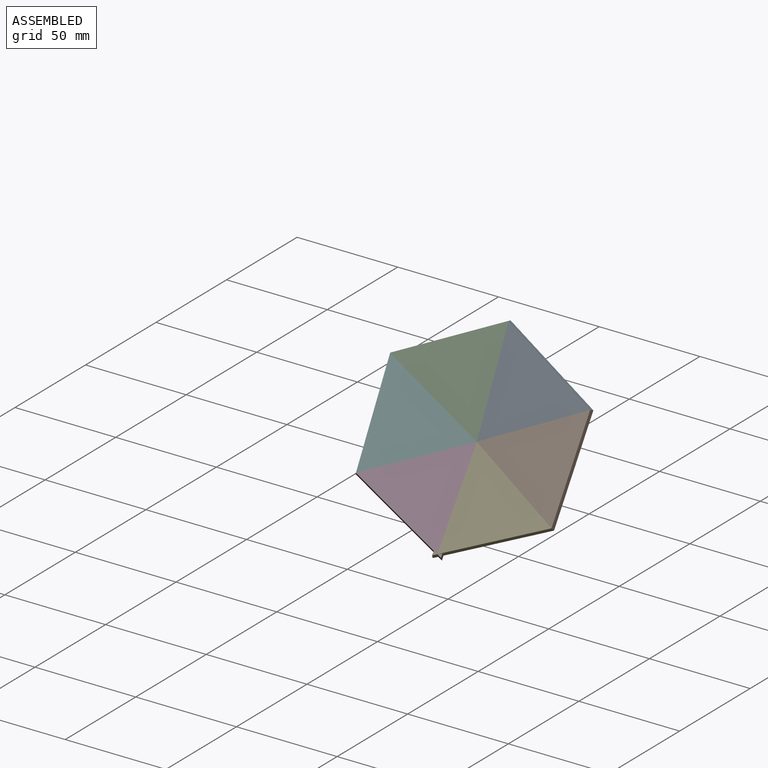
[diagram: assembled view]
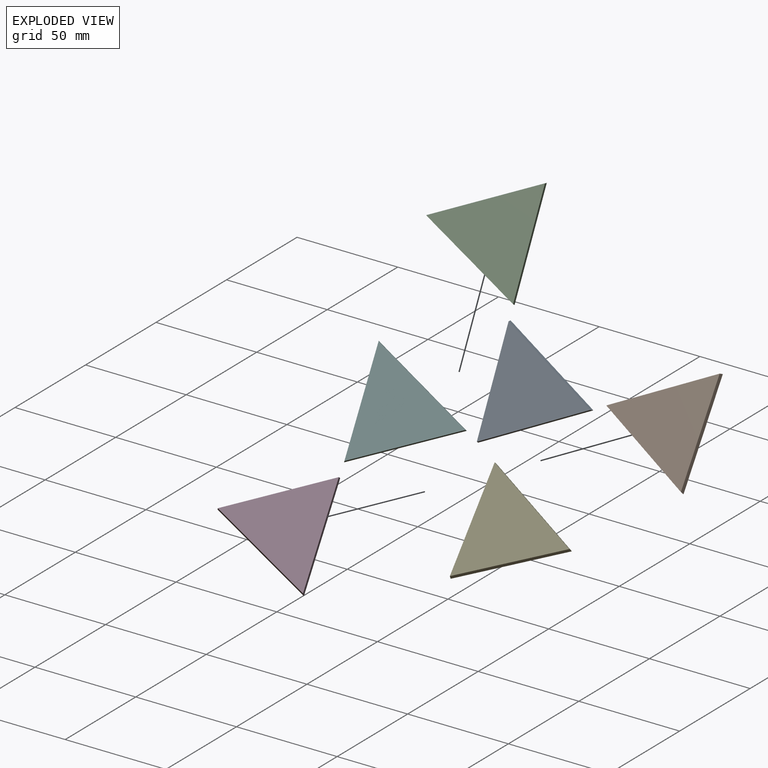
[diagram: exploded view]
GUIDED TOUR — MATED ASSEMBLY (Onshape document ef3dda941a2a794508bb46bf, AutoMate assembly ef3dda941a2a794508bb46bf_7052b6bd3e43988bdadec801_436c09d4516ab5b84d090b16_default)

This assembly has 6 components, labeled P0..P5 below (a component is one placed occurrence of a part; the same part can appear more than once), held together by 10 mates. A mate is a constraint between two components; its type names the relative motion it leaves free:
  REVOLUTE — leaves rotation about the listed axis free (a hinge).
Axis/direction vectors are unit vectors and 'through' points are millimeter coordinates, both in the assembly's world frame.

MATES
  1. REVOLUTE "Revolute 8": P5 <-> P3, axis (0.753, 0.613, 0.241) through (-97.90, 2.87, 72.25) mm
  2. REVOLUTE "Revolute 3": P2 <-> P0, axis (0.011, 0.427, 0.904) through (-58.09, 43.27, 109.05) mm
  3. REVOLUTE "Revolute 2": P1 <-> P0, axis (-0.855, -0.361, -0.372) through (-37.04, 43.79, 94.28) mm
  4. REVOLUTE "Revolute 7": P5 <-> P3, axis (0.753, 0.613, 0.241) through (-77.50, 16.85, 79.96) mm
  5. REVOLUTE "Revolute 1": P0 <-> P1, axis (0.855, 0.361, 0.372) through (-36.66, 41.60, 95.53) mm
  6. REVOLUTE "Revolute 1": P2 <-> P5, axis (0.802, 0.065, -0.594) through (-78.75, 30.76, 101.18) mm
  7. REVOLUTE "Revolute 2": P5 <-> P2, axis (-0.802, -0.065, 0.594) through (-79.77, 32.78, 100.02) mm
  8. REVOLUTE "Revolute 4": P0 <-> P2, axis (-0.011, -0.427, -0.904) through (-58.80, 45.49, 108.01) mm
  9. REVOLUTE "Revolute 6": P4 <-> P1, axis (-0.867, 0.196, 0.459) through (-14.35, 22.48, 62.78) mm
  10. REVOLUTE "Revolute 5": P4 <-> P1, axis (-0.867, 0.196, 0.459) through (-36.75, 29.42, 72.87) mm

ASSEMBLY ORDER
  1. P4 — the base component [order verified]
  2. P3 [order verified]
  3. P1 [order verified]
  4. P5 [order verified]
  5. P0 [order verified]
  6. P2 [order verified]
(P3 verified with a relaxed clearance tolerance: the source model stores slight part interference there.)
Order-tag legend:
  [order verified] — this step's position reverses a verified removal order: the component was checked to insert without passing through the ones already placed.

Of the 6 components, 6 carry the full construction recipe — the FeatureScript program that regenerates the part's solid from scratch; the rest are supplied as boundary geometry only.
Each toured component is shown spotlighted twice — in the assembled view, then in the exploded view, where a leader line traces a displaced component back to its assembled socket (saturated green if recipe-attached, orange if geometry-only; every other component desaturated gray) — followed by its recipe or geometry summary and the mates that hold it.
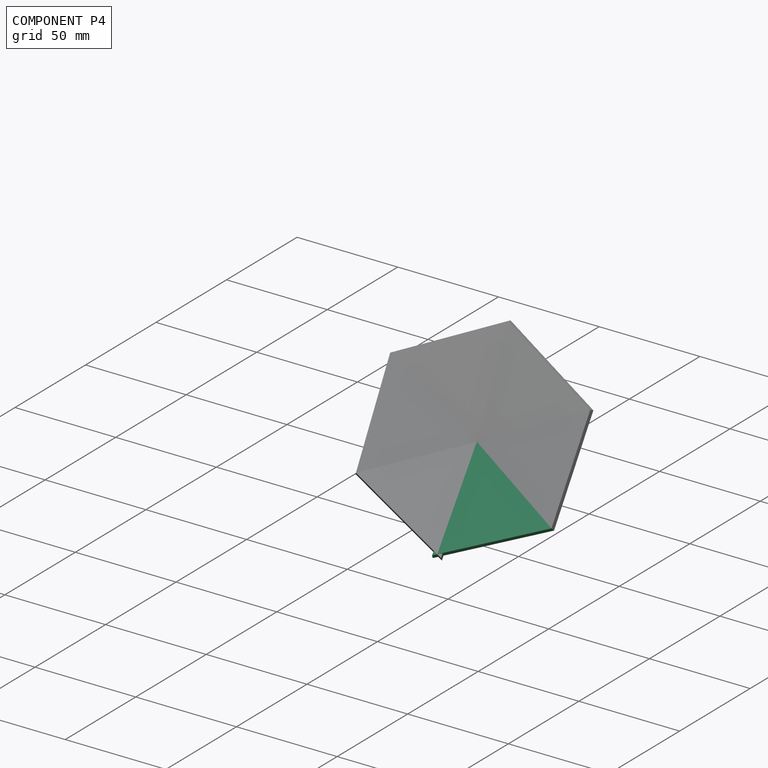
[diagram: component P4 — assembled]
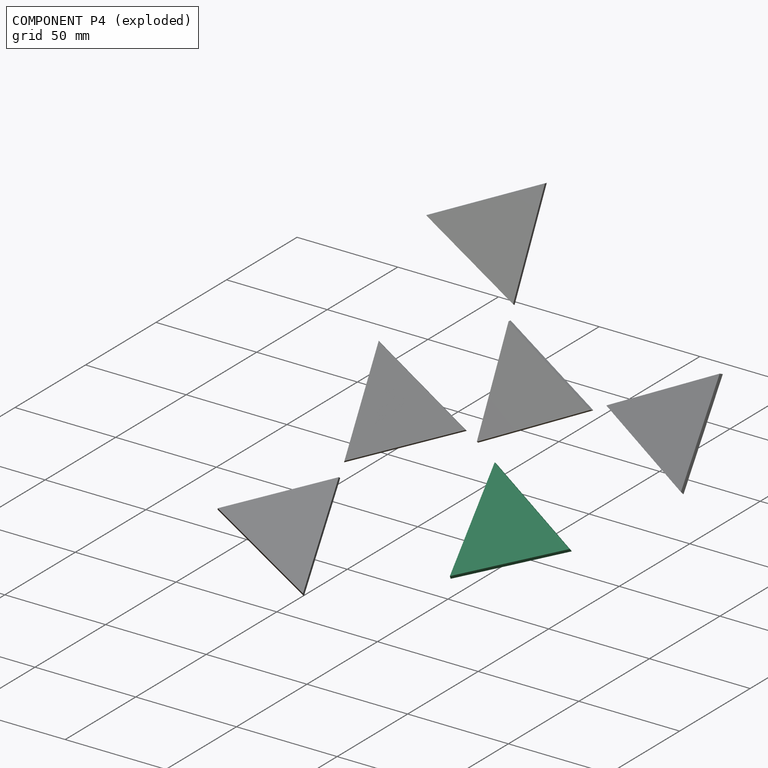
[diagram: component P4 — exploded]
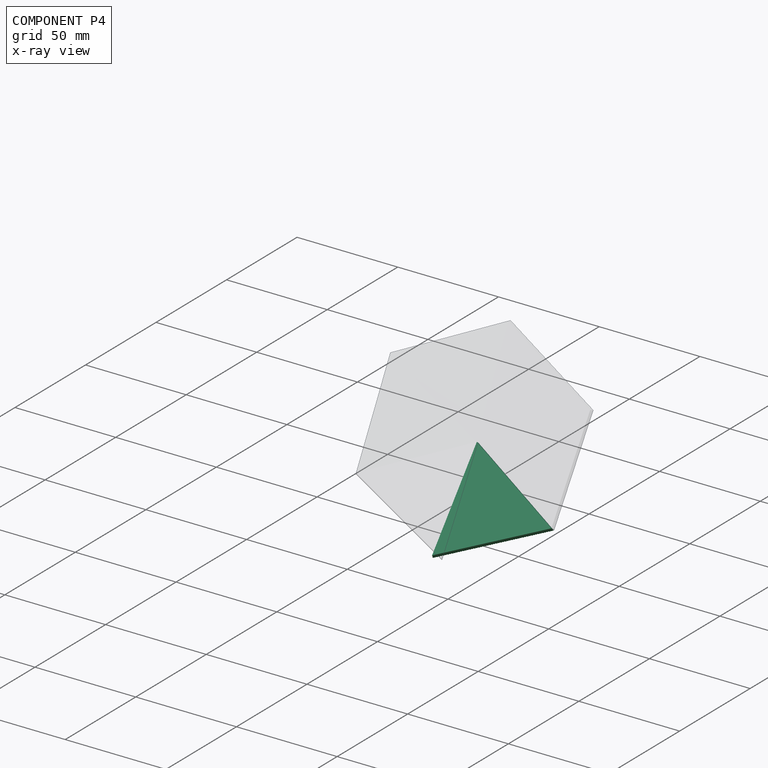
[diagram: component P4 — x-ray view]
COMPONENT P4 — same part as P0 (CADFS 00834853); its construction recipe is shown at P0.
Held by: REVOLUTE mate "Revolute 6" to P1; REVOLUTE mate "Revolute 5" to P1.
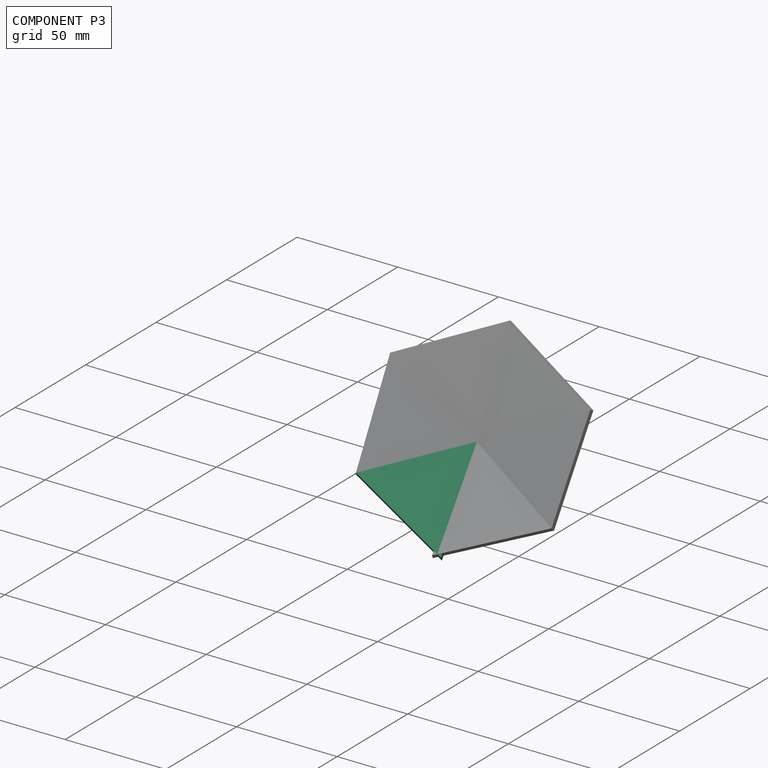
[diagram: component P3 — assembled]
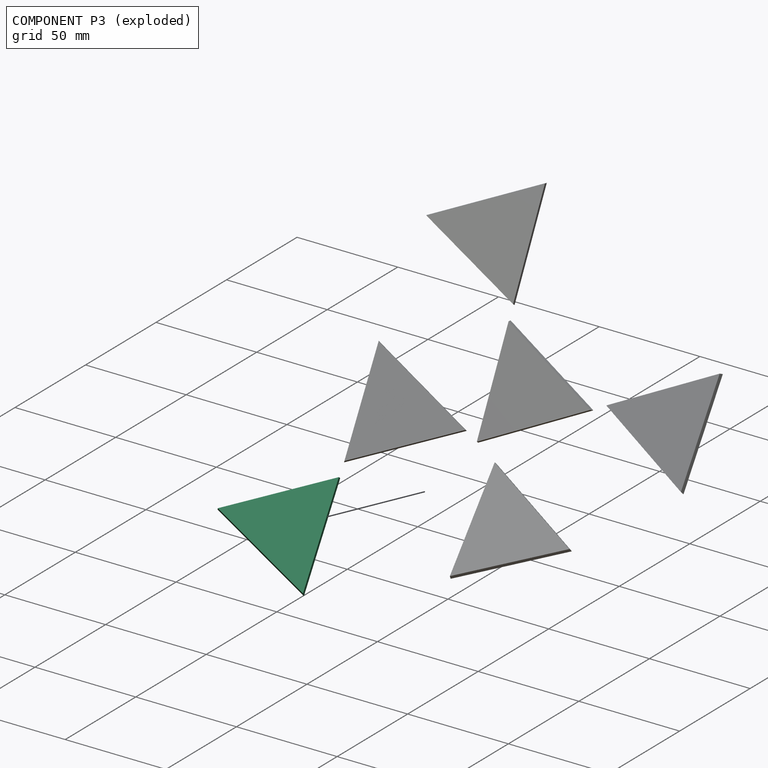
[diagram: component P3 — exploded]
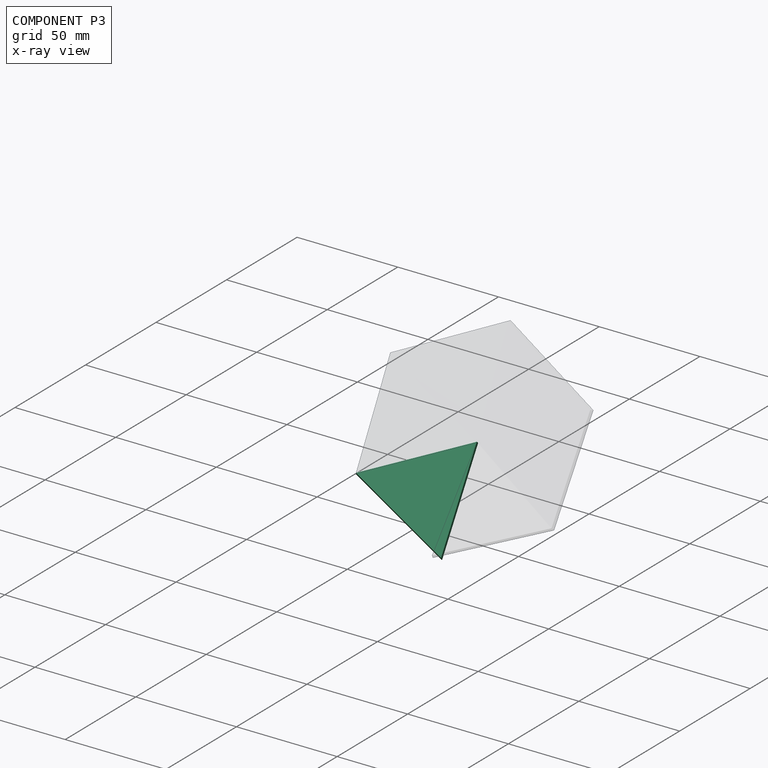
[diagram: component P3 — x-ray view]
COMPONENT P3 — same part as P0 (CADFS 00834853); its construction recipe is shown at P0.
Held by: REVOLUTE mate "Revolute 8" to P5; REVOLUTE mate "Revolute 7" to P5.
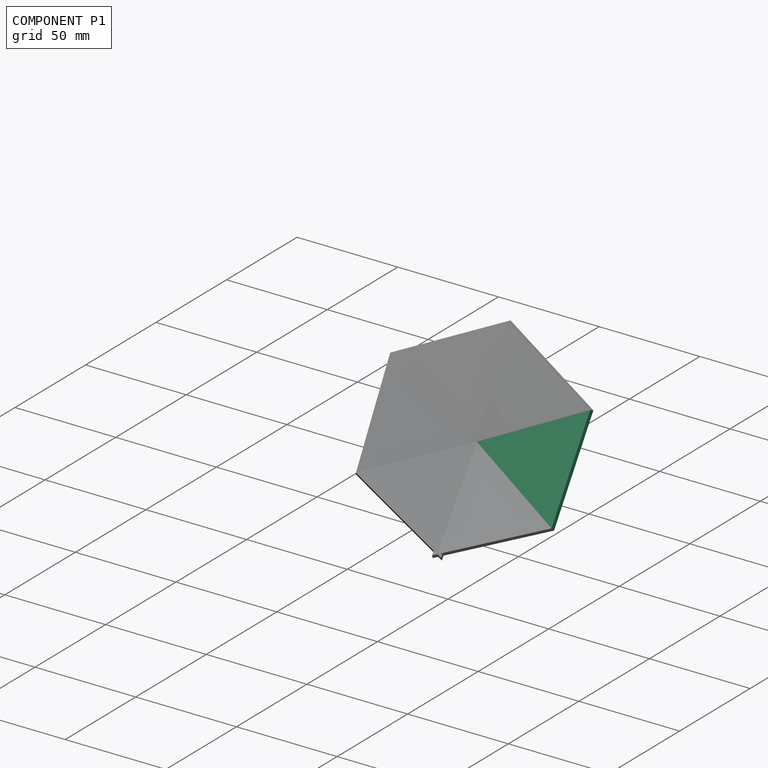
[diagram: component P1 — assembled]
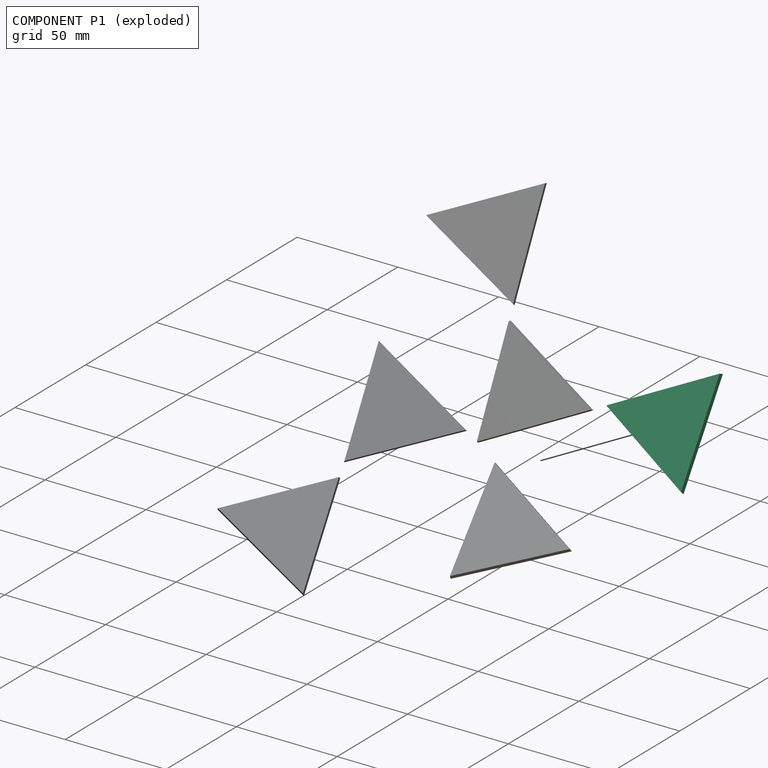
[diagram: component P1 — exploded]
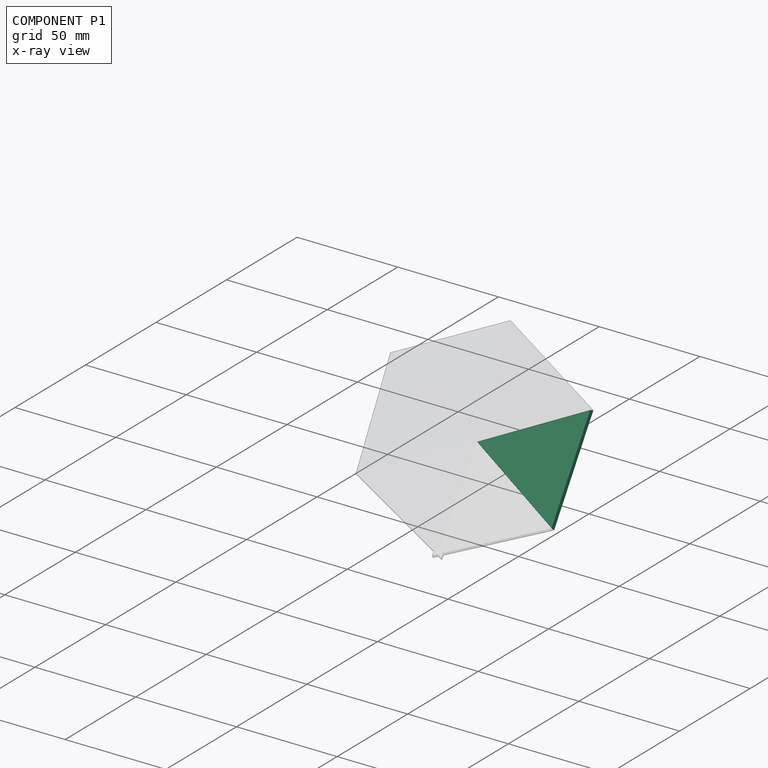
[diagram: component P1 — x-ray view]
COMPONENT P1 — same part as P0 (CADFS 00834853); its construction recipe is shown at P0.
Held by: REVOLUTE mate "Revolute 2" to P0; REVOLUTE mate "Revolute 1" to P0; REVOLUTE mate "Revolute 6" to P4; REVOLUTE mate "Revolute 5" to P4.
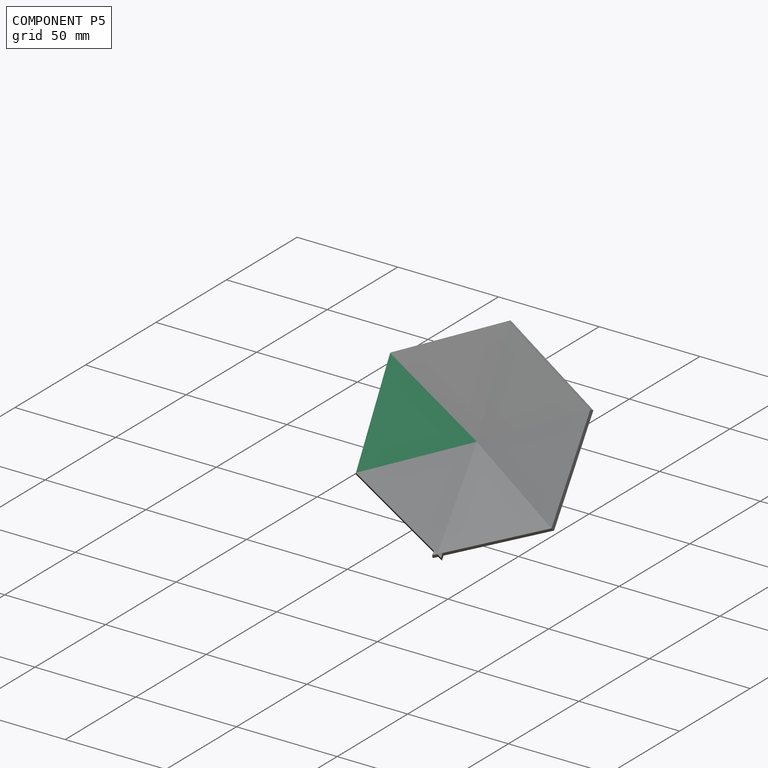
[diagram: component P5 — assembled]
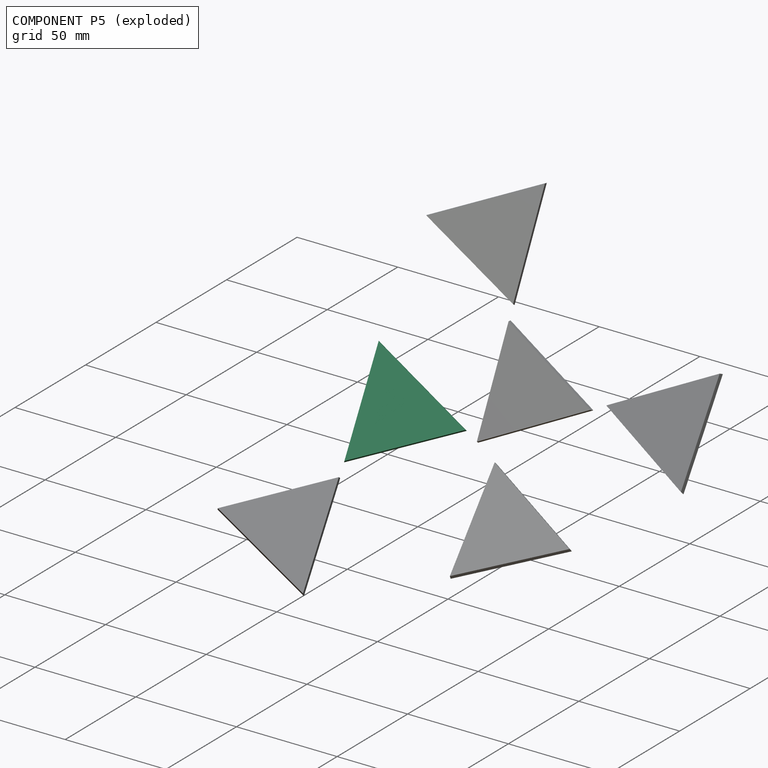
[diagram: component P5 — exploded]
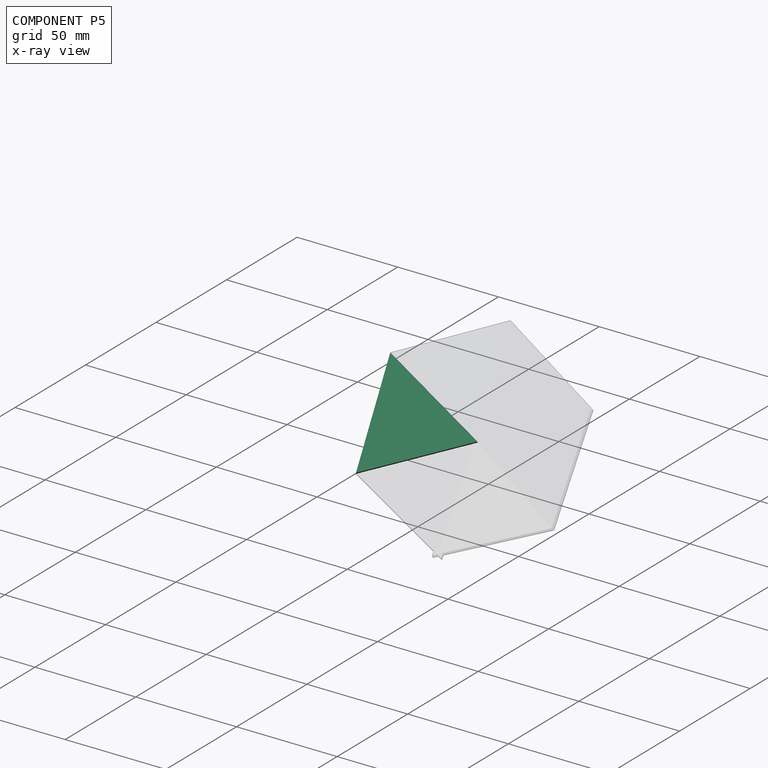
[diagram: component P5 — x-ray view]
COMPONENT P5 — same part as P0 (CADFS 00834853); its construction recipe is shown at P0.
Held by: REVOLUTE mate "Revolute 8" to P3; REVOLUTE mate "Revolute 7" to P3; REVOLUTE mate "Revolute 1" to P2; REVOLUTE mate "Revolute 2" to P2.
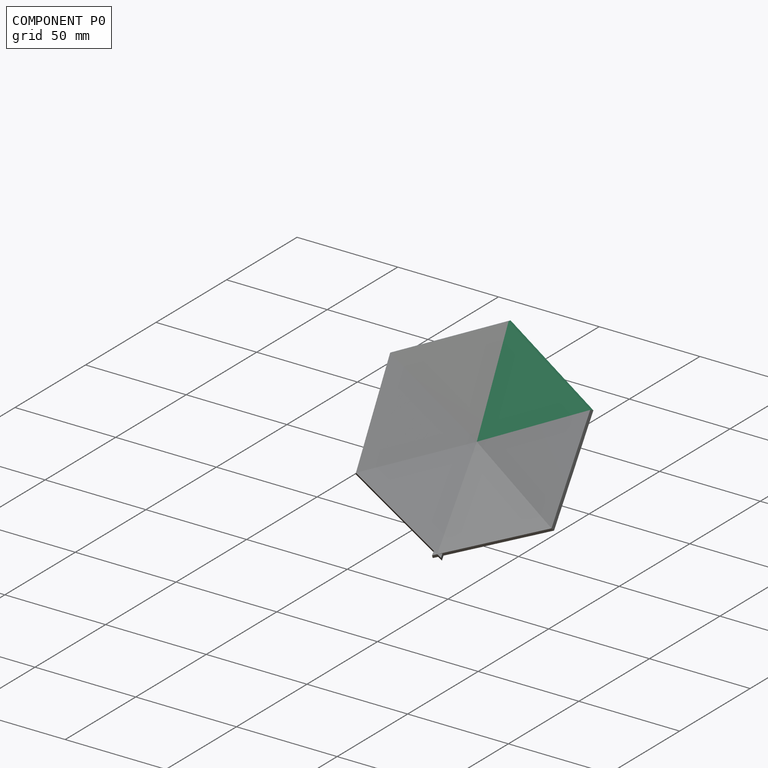
[diagram: component P0 — assembled]
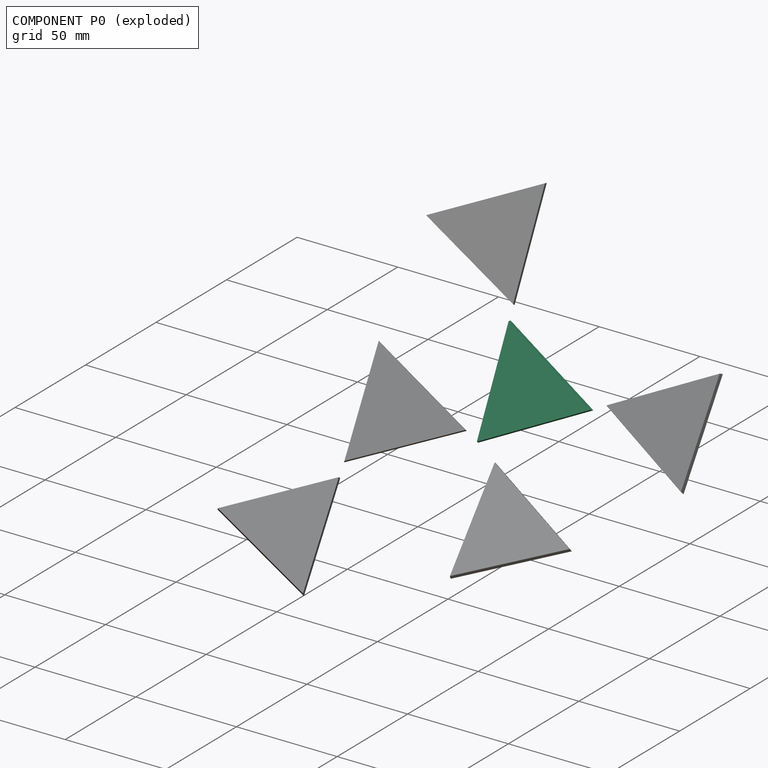
[diagram: component P0 — exploded]
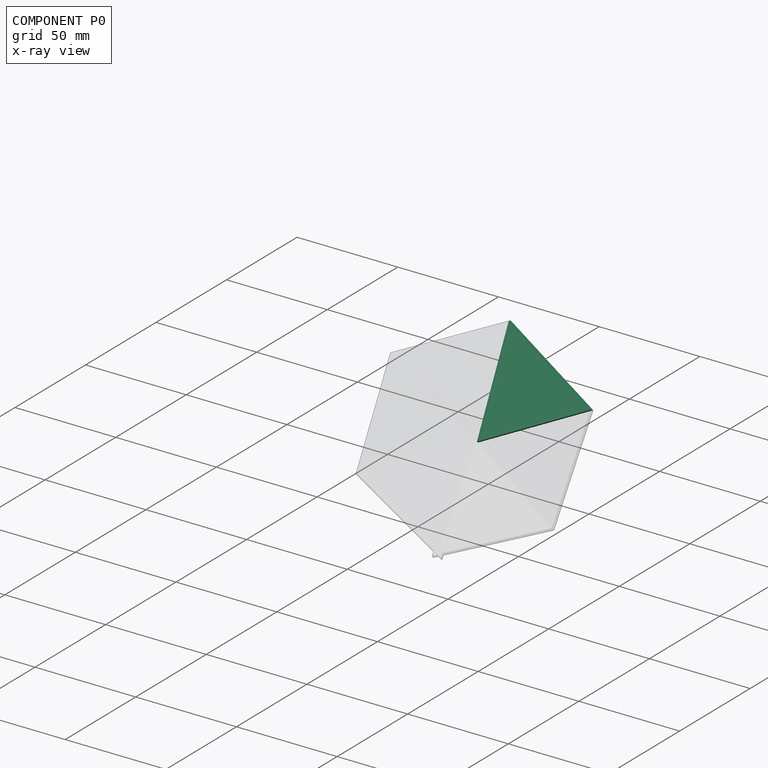
[diagram: component P0 — x-ray view]
COMPONENT P0 — recipe-attached (CADFS 00834853, mesh-verified: the recipe's output STEP matches this component's geometry to below the mesh-comparison resolution (tessellation chordal tolerance ~0.102 mm)).
Held by: REVOLUTE mate "Revolute 3" to P2; REVOLUTE mate "Revolute 2" to P1; REVOLUTE mate "Revolute 1" to P1; REVOLUTE mate "Revolute 4" to P2.
Construction recipe (FeatureScript — the CAD program that rebuilds this solid; sketch coordinates are in the units given by the * unit suffixes, e.g. mm):

FeatureScript 1511;
import(path : "onshape/std/geometry.fs", version : "1511.0");
import(path : "onshape/std/common.fs", version : "1511.0");
const mm = millimeter;
const VERTEX = EntityType.VERTEX;
const EDGE = EntityType.EDGE;
const FACE = EntityType.FACE;
const BODY = EntityType.BODY;
function v(x, y){return vector(x, y);}
function OD(order){return orderDisambiguation(order);}
function OSD(set){return originalSetDisambiguation(set);}
function TD(topology){return topologyDisambiguation(topology);}
function TDD(query){return trueDependencyDisambiguation(query);}
function sQuery(a, b, c) {return sketchEntityQuery(a, b, c);}

annotation { "Feature Type Name" : "Feature", "Feature Type Description" : "" }
export const myFeature = defineFeature(function(context is Context, id is Id, definition is map)
    precondition{}
    {
        {
            var Q0;
            Q0=qCreatedBy(makeId("Front.planeOp"),FACE);
            var sketch = newSketch(context, id + "F0", { "sketchPlane" : qUnion([Q0])});
            skLineSegment(sketch, "E0", {"start": v(-25.4, 0) * mm, "end": v(25.4, 0) * mm});
            skLineSegment(sketch, "E1", {"start": v(25.4, 0) * mm, "end": v(0, 44) * mm});
            skPoint(sketch, "E1.endSnap0", {"position": v(0, 0) * mm});
            skLineSegment(sketch, "E2", {"start": v(0, 44) * mm, "end": v(-25.4, 0) * mm});
            skSolve(sketch);
        }
        {
            var Q0;
            Q0=makeQuery(id+"F0.imprint","IMPRINT",FACE,{"disambiguationData":[TD([[makeQuery(id+"F0.imprint","IMPRINT",EDGE,{"derivedFrom":sQuery(id+"F0.wireOp",EDGE,"E0")}),1.0]])]});
            extrude(context, id + "F1", {"entities" : qUnion([Q0]), "depth" : 2.54 * mm, "offsetDistance" : 25.4 * mm, "hasDraft" : true, "draftAngle" : 5 * degree});
        }
    });
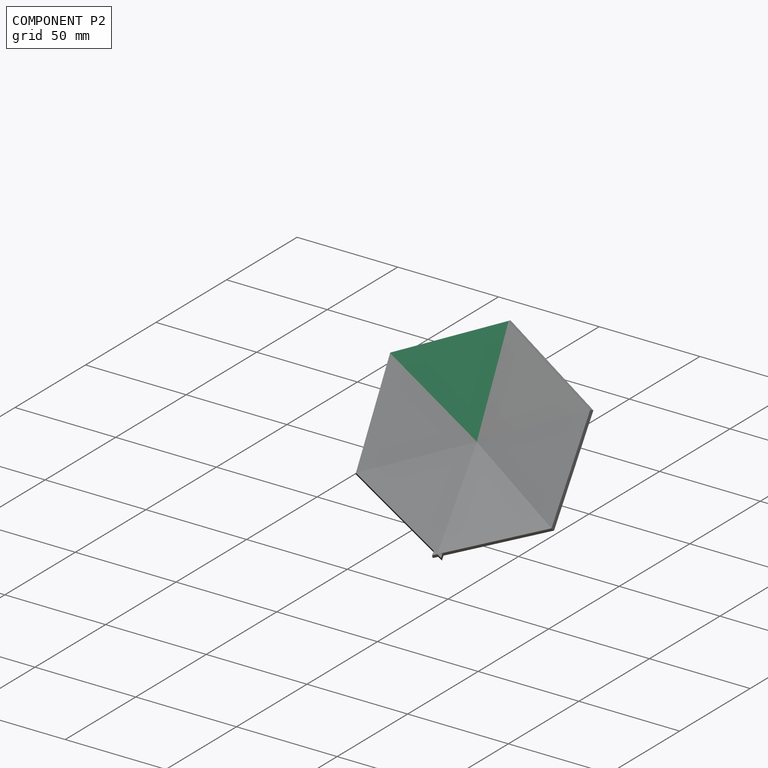
[diagram: component P2 — assembled]
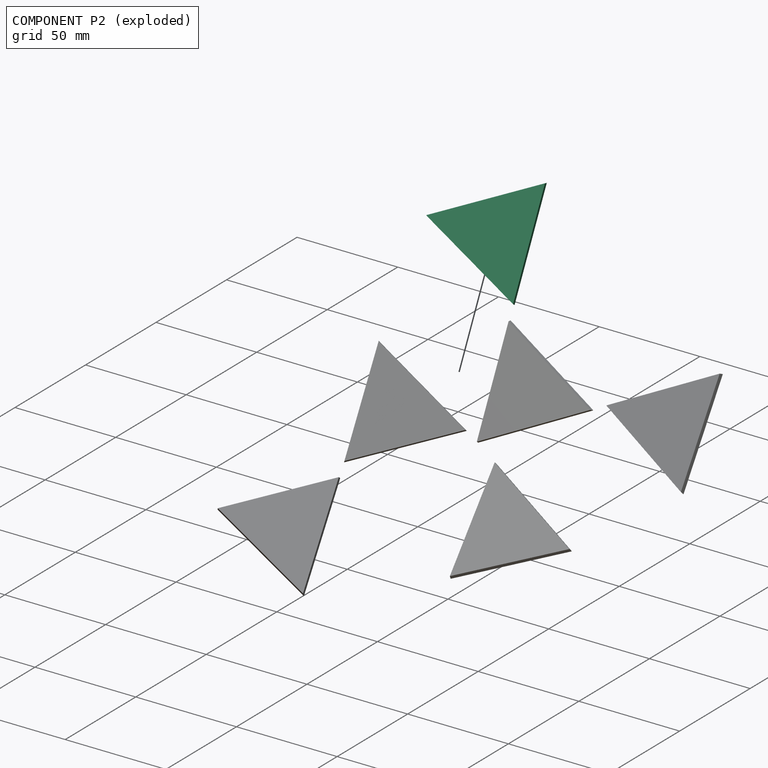
[diagram: component P2 — exploded]
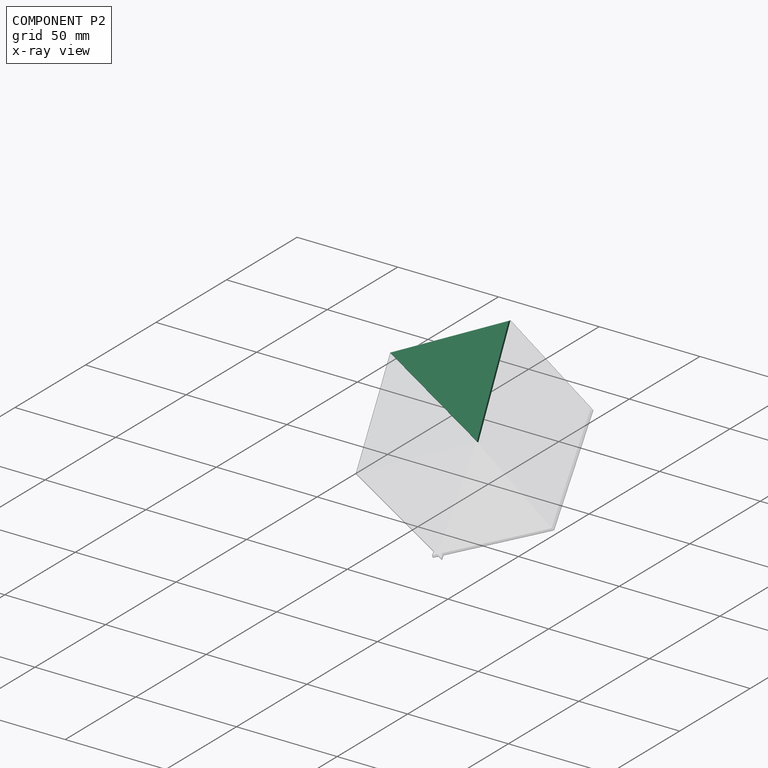
[diagram: component P2 — x-ray view]
COMPONENT P2 — same part as P0 (CADFS 00834853); its construction recipe is shown at P0.
Held by: REVOLUTE mate "Revolute 3" to P0; REVOLUTE mate "Revolute 1" to P5; REVOLUTE mate "Revolute 2" to P5; REVOLUTE mate "Revolute 4" to P0.
PROVENANCE & LICENSES
Assembly (occurrences, transforms, mates, per-part STEP geometry): AutoMate dataset, Zenodo record 7776208, CC0.
Construction recipes: CADFS (HuggingFace VladPyatov/CADFS, CC-BY-4.0, layered over the ABC dataset), FeatureScript reconstruction programs keyed by ABC model id.
Join: ABC meta listings map ABC model id -> Onshape documentId; within a shared document, parts are matched by geometric signature (bounding-box dims + volume at 0.1% relative tolerance, exact B-rep face/solid counts).
Verification: 6 of this assembly's 6 components carry a recipe attachment, and every attachment is mesh-verified: the CADFS STEP and the AutoMate member STEP were compared as meshes in their shared local frame (symmetric sampled-point-to-mesh distance); worst across the 6 attachments: below the mesh-comparison resolution (tessellation chordal tolerance ~0.102 mm) on a 68 mm part.
Renders: orthographic iso camera (az 35 / el 25); the floor grid conveys scale (grid pitch printed in each image; no ruler). In the exploded view each component is displaced by its stored offset vector: the offsets alone carry the explosion direction (mate normal/axis signs are not orientation cues and do not encode it), and separation distances are assigned per mate-chain, not proportionally to assembly-order depth.
